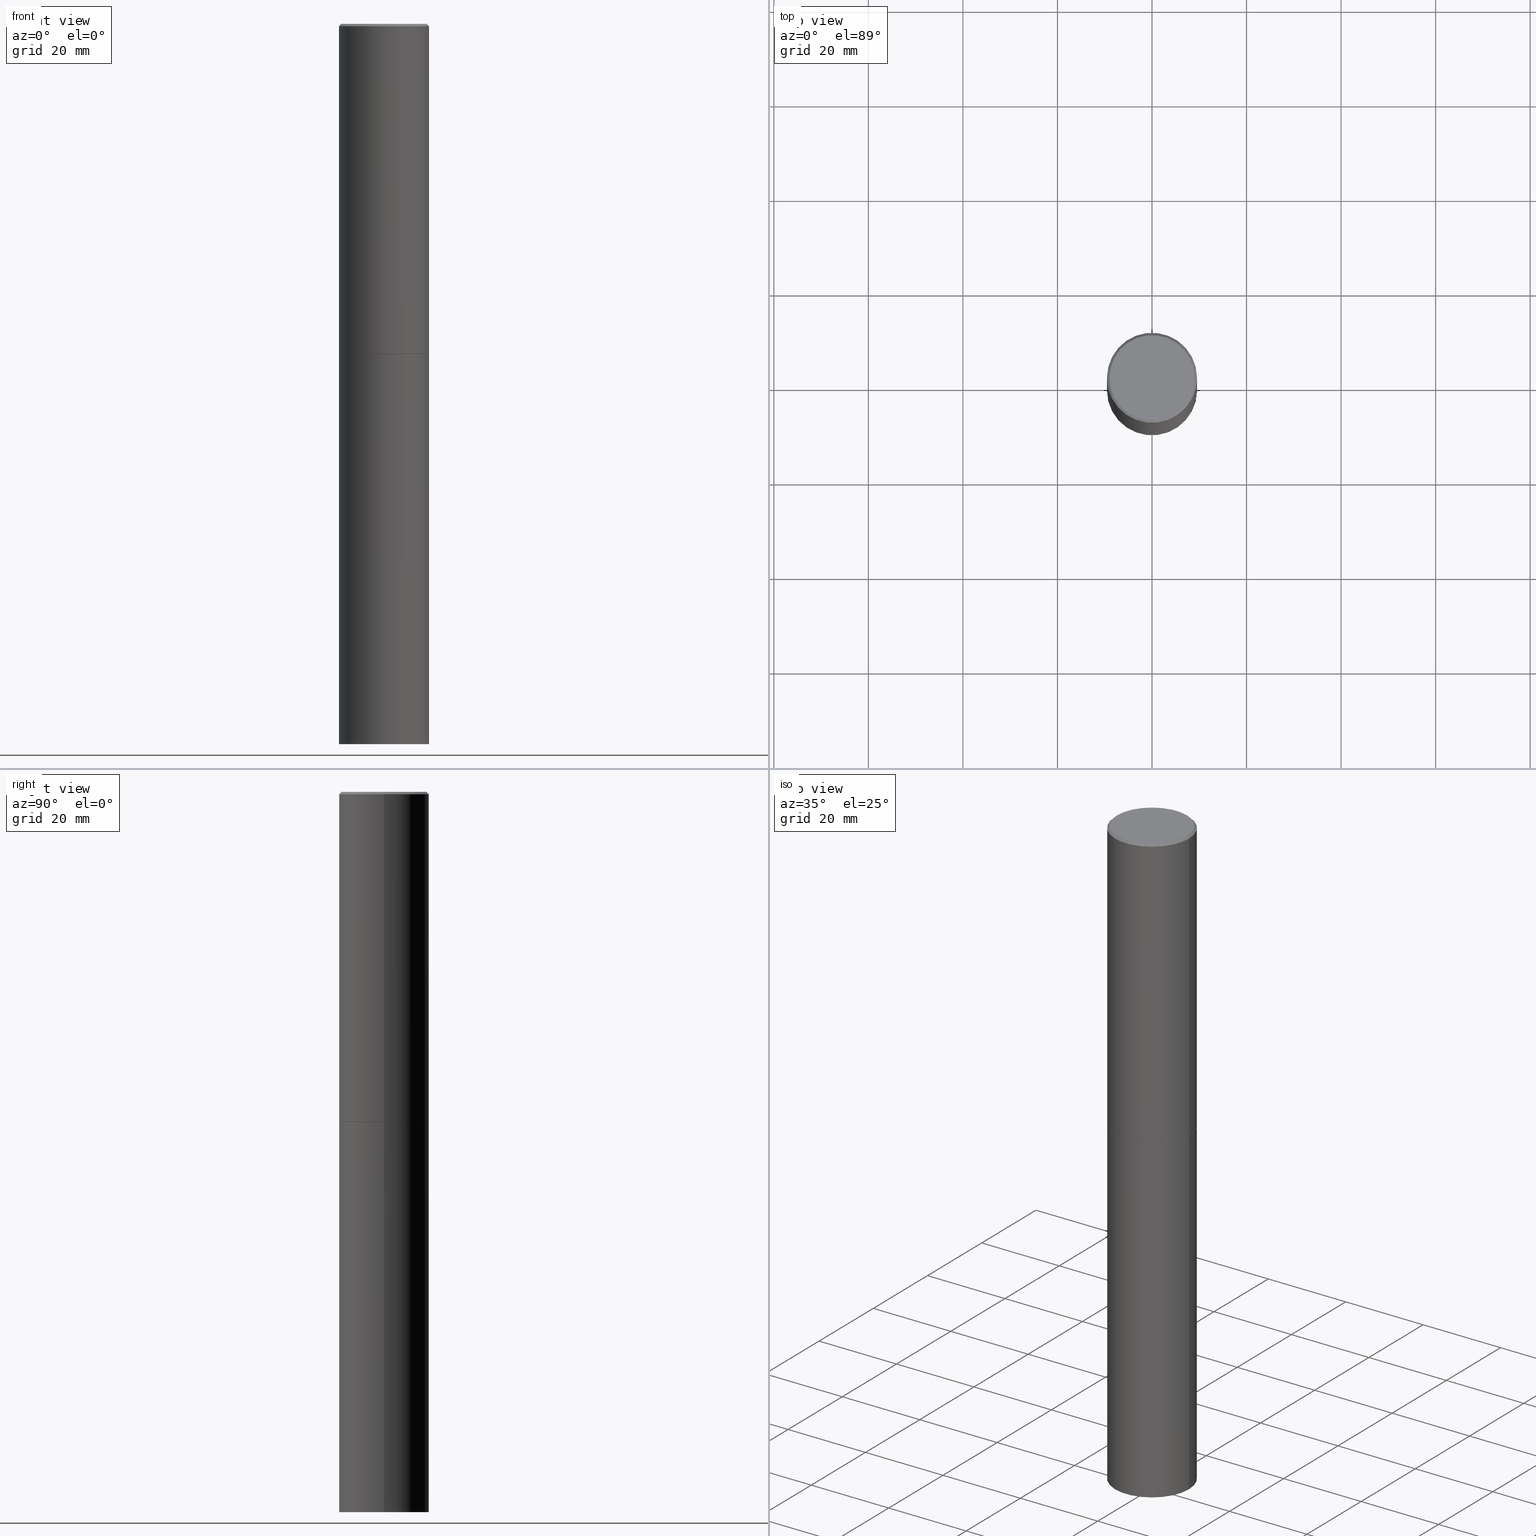
[diagram: canonical four-view strip — front | top / right | iso, engineering-drawing reading convention]
A machine part, canonical four-view strip (front | top / right | iso — engineering-drawing reading convention). The complete STEP part file that produces these views, byte-faithful:
ISO-10303-21;
HEADER;
FILE_DESCRIPTION (( 'STEP AP203' ),
    '1' );
FILE_NAME ('34723.STEP',
    '2024-02-27T17:05:42',
    ( '' ),
    ( '' ),
    'SwSTEP 2.0',
    'SolidWorks 2023',
    '' );
FILE_SCHEMA (( 'CONFIG_CONTROL_DESIGN' ));
ENDSEC;

DATA;
#1 = CIRCLE ( 'NONE', #185, 0.3549999999999997047 ) ;
#2 = APPROVAL ( #353, 'UNSPECIFIED' ) ;
#3 = VERTEX_POINT ( 'NONE', #124 ) ;
#4 = PERSON_AND_ORGANIZATION_ROLE ( 'design_supplier' ) ;
#5 = VECTOR ( 'NONE', #45, 39.37007874015748143 ) ;
#6 = FACE_OUTER_BOUND ( 'NONE', #59, .T. ) ;
#7 = EDGE_CURVE ( 'NONE', #366, #65, #363, .T. ) ;
#8 = EDGE_LOOP ( 'NONE', ( #82, #254, #249, #308 ) ) ;
#9 = EDGE_LOOP ( 'NONE', ( #141, #110 ) ) ;
#10 = DATE_AND_TIME ( #318, #79 ) ;
#11 = DIRECTION ( 'NONE',  ( 1.000000000000000000, -6.982962677686266711E-15, 4.876176775795935793E-29 ) ) ;
#12 = CARTESIAN_POINT ( 'NONE',  ( 6.722593748202942280E-29, -9.598082200479810007E-15, -2.749000000000000554 ) ) ;
#13 = CARTESIAN_POINT ( 'NONE',  ( 1.467281283711081958E-28, -2.094888803305887271E-14, -6.000000000000000888 ) ) ;
#14 = DIRECTION ( 'NONE',  ( 1.000000000000000000, -6.982962677686265133E-15, 0.000000000000000000 ) ) ;
#15 = CARTESIAN_POINT ( 'NONE',  ( 0.3749999999999998890, -2.618611004132349228E-15, 1.828566290923475362E-29 ) ) ;
#16 = ADVANCED_FACE ( 'NONE', ( #333 ), #159, .T. ) ;
#17 = CONICAL_SURFACE ( 'NONE', #61, 0.3749999999999997780, 0.7853981633974471688 ) ;
#18 = APPLICATION_CONTEXT ( 'configuration controlled 3d designs of mechanical parts and assemblies' ) ;
#19 = DIRECTION ( 'NONE',  ( 1.000000000000000000, -6.982962677686265922E-15, 4.876231632511992107E-29 ) ) ;
#20 = EDGE_CURVE ( 'NONE', #30, #3, #56, .T. ) ;
#21 = DIRECTION ( 'NONE',  ( -2.445468806185136597E-29, 3.491481338843145583E-15, 1.000000000000000000 ) ) ;
#22 = VERTEX_POINT ( 'NONE', #235 ) ;
#23 = VECTOR ( 'NONE', #265, 39.37007874015748143 ) ;
#24 =( CONVERSION_BASED_UNIT ( 'INCH', #304 ) LENGTH_UNIT ( ) NAMED_UNIT ( #132 ) );
#25 = AXIS2_PLACEMENT_3D ( 'NONE', #364, #51, #213 ) ;
#26 = EDGE_CURVE ( 'NONE', #22, #283, #184, .T. ) ;
#27 = CIRCLE ( 'NONE', #151, 0.3749999999999997780 ) ;
#28 = ORIENTED_EDGE ( 'NONE', *, *, #144, .F. ) ;
#29 = CALENDAR_DATE ( 2024, 27, 2 ) ;
#30 = VERTEX_POINT ( 'NONE', #41 ) ;
#31 = CIRCLE ( 'NONE', #205, 0.3750000000000000555 ) ;
#32 = EDGE_LOOP ( 'NONE', ( #218, #34 ) ) ;
#33 = EDGE_CURVE ( 'NONE', #344, #366, #73, .T. ) ;
#34 = ORIENTED_EDGE ( 'NONE', *, *, #358, .T. ) ;
#35 = FACE_OUTER_BOUND ( 'NONE', #186, .T. ) ;
#36 = PERSON_AND_ORGANIZATION_ROLE ( 'classification_officer' ) ;
#37 = DIRECTION ( 'NONE',  ( 2.445468806185136597E-29, -3.491481338843145583E-15, -1.000000000000000000 ) ) ;
#38 = EDGE_LOOP ( 'NONE', ( #187, #341 ) ) ;
#39 = SECURITY_CLASSIFICATION_LEVEL ( 'unclassified' ) ;
#40 = DIRECTION ( 'NONE',  ( 1.000000000000000000, -6.982962677686266711E-15, 4.876176775795935793E-29 ) ) ;
#41 = CARTESIAN_POINT ( 'NONE',  ( 0.3750000000000000555, -1.222018468595100145E-14, -2.750000000000000000 ) ) ;
#42 = AXIS2_PLACEMENT_3D ( 'NONE', #266, #95, #150 ) ;
#43 = DIRECTION ( 'NONE',  ( -2.445468806185136597E-29, 3.491481338843145583E-15, 1.000000000000000000 ) ) ;
#44 = LINE ( 'NONE', #120, #204 ) ;
#45 = DIRECTION ( 'NONE',  ( -2.445468806185136877E-29, 3.491481338843145188E-15, 1.000000000000000000 ) ) ;
#46 = ADVANCED_FACE ( 'NONE', ( #174 ), #93, .F. ) ;
#47 = CARTESIAN_POINT ( 'NONE',  ( -0.3749999999999998890, 2.664535259100374908E-15, -1.844600658845589038E-29 ) ) ;
#48 = AXIS2_PLACEMENT_3D ( 'NONE', #52, #176, #296 ) ;
#49 = AXIS2_PLACEMENT_3D ( 'NONE', #348, #193, #11 ) ;
#50 = EDGE_CURVE ( 'NONE', #22, #366, #44, .T. ) ;
#51 = DIRECTION ( 'NONE',  ( -2.445468806185136597E-29, 3.491481338843145583E-15, 1.000000000000000000 ) ) ;
#52 = CARTESIAN_POINT ( 'NONE',  ( 2.478951750578622237E-15, 0.3549999999999997047, -1.237341619044265441E-15 ) ) ;
#53 = DIRECTION ( 'NONE',  ( 1.000000000000000000, -6.982962677686265133E-15, 0.000000000000000000 ) ) ;
#54 =( GEOMETRIC_REPRESENTATION_CONTEXT ( 3 ) GLOBAL_UNCERTAINTY_ASSIGNED_CONTEXT ( ( #212 ) ) GLOBAL_UNIT_ASSIGNED_CONTEXT ( ( #24, #251, #191 ) ) REPRESENTATION_CONTEXT ( 'NONE', 'WORKASPACE' ) );
#55 = APPROVAL_DATE_TIME ( #330, #199 ) ;
#56 = CIRCLE ( 'NONE', #68, 0.3750000000000000555 ) ;
#57 = DIRECTION ( 'NONE',  ( -2.445468806185136597E-29, 3.491481338843145583E-15, 1.000000000000000000 ) ) ;
#58 = EDGE_CURVE ( 'NONE', #283, #65, #146, .T. ) ;
#59 = EDGE_LOOP ( 'NONE', ( #222, #136, #208, #84 ) ) ;
#60 = DATE_AND_TIME ( #232, #305 ) ;
#61 = AXIS2_PLACEMENT_3D ( 'NONE', #290, #37, #69 ) ;
#62 = AXIS2_PLACEMENT_3D ( 'NONE', #126, #198, #189 ) ;
#63 = DIRECTION ( 'NONE',  ( -2.445468806185136597E-29, 3.491481338843145583E-15, 1.000000000000000000 ) ) ;
#64 = CC_DESIGN_PERSON_AND_ORGANIZATION_ASSIGNMENT ( #162, #355, ( #99 ) ) ;
#65 = VERTEX_POINT ( 'NONE', #196 ) ;
#66 = COORDINATED_UNIVERSAL_TIME_OFFSET ( 5, 0, .BEHIND. ) ;
#67 = COORDINATED_UNIVERSAL_TIME_OFFSET ( 5, 0, .BEHIND. ) ;
#68 = AXIS2_PLACEMENT_3D ( 'NONE', #177, #239, #271 ) ;
#69 = DIRECTION ( 'NONE',  ( -1.000000000000000000, 6.982962677686265922E-15, 0.000000000000000000 ) ) ;
#70 = VECTOR ( 'NONE', #121, 39.37007874015748143 ) ;
#71 = MECHANICAL_CONTEXT ( 'NONE', #147, 'mechanical' ) ;
#72 = EDGE_LOOP ( 'NONE', ( #284, #248, #91, #107 ) ) ;
#73 = LINE ( 'NONE', #47, #164 ) ;
#74 = CARTESIAN_POINT ( 'NONE',  ( 4.890937612370298557E-31, -6.982962677686327354E-17, -0.02000000000000010103 ) ) ;
#75 = EDGE_CURVE ( 'NONE', #344, #325, #192, .T. ) ;
#76 = LOCAL_TIME ( 12, 5, 42.00000000000000000, #335 ) ;
#77 = VERTEX_POINT ( 'NONE', #356 ) ;
#78 = SHAPE_DEFINITION_REPRESENTATION ( #317, #277 ) ;
#79 = LOCAL_TIME ( 12, 5, 42.00000000000000000, #67 ) ;
#80 = ORIENTED_EDGE ( 'NONE', *, *, #247, .F. ) ;
#81 = ADVANCED_FACE ( 'NONE', ( #229 ), #256, .T. ) ;
#82 = ORIENTED_EDGE ( 'NONE', *, *, #58, .F. ) ;
#83 = CARTESIAN_POINT ( 'NONE',  ( 0.000000000000000000, 0.000000000000000000, 0.000000000000000000 ) ) ;
#84 = ORIENTED_EDGE ( 'NONE', *, *, #291, .F. ) ;
#85 = DIRECTION ( 'NONE',  ( 1.000000000000000000, -6.982962677686265133E-15, 0.000000000000000000 ) ) ;
#86 = DIRECTION ( 'NONE',  ( -2.445468806185136877E-29, 3.491481338843145188E-15, 1.000000000000000000 ) ) ;
#87 = ORIENTED_EDGE ( 'NONE', *, *, #270, .F. ) ;
#88 = PERSON_AND_ORGANIZATION ( #298, #133 ) ;
#89 = ADVANCED_FACE ( 'NONE', ( #169 ), #17, .T. ) ;
#90 = CC_DESIGN_APPROVAL ( #199, ( #172 ) ) ;
#91 = ORIENTED_EDGE ( 'NONE', *, *, #352, .T. ) ;
#92 = APPROVAL_DATE_TIME ( #60, #183 ) ;
#93 = PLANE ( 'NONE',  #42 ) ;
#94 = CYLINDRICAL_SURFACE ( 'NONE', #274, 0.3750000000000000555 ) ;
#95 = DIRECTION ( 'NONE',  ( -2.438088387897960049E-29, 3.491481338843145188E-15, 1.000000000000000000 ) ) ;
#96 = CARTESIAN_POINT ( 'NONE',  ( 1.467281283711081958E-28, -2.094888803305887271E-14, -6.000000000000000888 ) ) ;
#97 = COORDINATED_UNIVERSAL_TIME_OFFSET ( 5, 0, .BEHIND. ) ;
#98 = DIRECTION ( 'NONE',  ( 2.445468806185136597E-29, -3.491481338843145583E-15, -1.000000000000000000 ) ) ;
#99 = PRODUCT_DEFINITION ( 'UNKNOWN', '', #246, #302 ) ;
#100 = CARTESIAN_POINT ( 'NONE',  ( -1.043851414335219820E-46, 1.490343170380447200E-32, 4.268512490100411279E-18 ) ) ;
#101 = AXIS2_PLACEMENT_3D ( 'NONE', #170, #105, #357 ) ;
#102 = PLANE ( 'NONE',  #135 ) ;
#103 = APPROVAL_STATUS ( 'not_yet_approved' ) ;
#104 = DIRECTION ( 'NONE',  ( 1.000000000000000000, -6.982962677686266711E-15, 0.000000000000000000 ) ) ;
#105 = DIRECTION ( 'NONE',  ( 0.000000000000000000, 0.000000000000000000, 1.000000000000000000 ) ) ;
#106 = PRODUCT_RELATED_PRODUCT_CATEGORY ( 'detail', '', ( #334 ) ) ;
#107 = ORIENTED_EDGE ( 'NONE', *, *, #50, .F. ) ;
#108 = PERSON_AND_ORGANIZATION ( #298, #133 ) ;
#109 = APPROVAL_PERSON_ORGANIZATION ( #139, #183, #118 ) ;
#110 = ORIENTED_EDGE ( 'NONE', *, *, #125, .F. ) ;
#111 = AXIS2_PLACEMENT_3D ( 'NONE', #294, #43, #14 ) ;
#112 = VECTOR ( 'NONE', #301, 39.37007874015748143 ) ;
#113 = ADVANCED_FACE ( 'NONE', ( #200 ), #203, .T. ) ;
#114 = ORIENTED_EDGE ( 'NONE', *, *, #352, .F. ) ;
#115 = AXIS2_PLACEMENT_3D ( 'NONE', #228, #128, #40 ) ;
#116 = ORIENTED_EDGE ( 'NONE', *, *, #286, .T. ) ;
#117 = DIRECTION ( 'NONE',  ( 1.000000000000000000, -6.982962677686261189E-15, 0.000000000000000000 ) ) ;
#118 = APPROVAL_ROLE ( '' ) ;
#119 = CYLINDRICAL_SURFACE ( 'NONE', #49, 0.3749999999999998890 ) ;
#120 = CARTESIAN_POINT ( 'NONE',  ( -0.3749999999999997780, 2.548781377355484746E-15, -0.02000000000000010103 ) ) ;
#121 = DIRECTION ( 'NONE',  ( -0.7071067811870063169, 7.493145998872012346E-15, 0.7071067811860887176 ) ) ;
#122 = CC_DESIGN_SECURITY_CLASSIFICATION ( #172, ( #246 ) ) ;
#123 = PERSON_AND_ORGANIZATION_ROLE ( 'design_owner' ) ;
#124 = CARTESIAN_POINT ( 'NONE',  ( -0.3750000000000000555, -1.261069559833838480E-14, -2.750000000000000000 ) ) ;
#125 = EDGE_CURVE ( 'NONE', #220, #311, #137, .T. ) ;
#126 = CARTESIAN_POINT ( 'NONE',  ( 6.722593748202942280E-29, -9.598082200479810007E-15, -2.749000000000000554 ) ) ;
#127 = DIRECTION ( 'NONE',  ( -2.445468806185136597E-29, 3.491481338843145583E-15, 1.000000000000000000 ) ) ;
#128 = DIRECTION ( 'NONE',  ( -2.445468806185136597E-29, 3.491481338843145583E-15, 1.000000000000000000 ) ) ;
#129 = APPROVAL_PERSON_ORGANIZATION ( #108, #199, #332 ) ;
#130 = CARTESIAN_POINT ( 'NONE',  ( 2.618611004132417464E-15, 0.3749999999999903966, -2.750000000000000888 ) ) ;
#131 = VERTEX_POINT ( 'NONE', #240 ) ;
#132 = DIMENSIONAL_EXPONENTS ( 1.000000000000000000, 0.000000000000000000, 0.000000000000000000, 0.000000000000000000, 0.000000000000000000, 0.000000000000000000, 0.000000000000000000 ) ;
#133 = ORGANIZATION ( 'UNSPECIFIED', 'UNSPECIFIED', '' ) ;
#134 = ADVANCED_FACE ( 'NONE', ( #230 ), #261, .F. ) ;
#135 = AXIS2_PLACEMENT_3D ( 'NONE', #130, #207, #243 ) ;
#136 = ORIENTED_EDGE ( 'NONE', *, *, #270, .T. ) ;
#137 = CIRCLE ( 'NONE', #111, 0.3739999999999999991 ) ;
#138 = APPROVAL_PERSON_ORGANIZATION ( #346, #2, #315 ) ;
#139 = PERSON_AND_ORGANIZATION ( #298, #133 ) ;
#140 = DIRECTION ( 'NONE',  ( -2.445468806185136597E-29, 3.491481338843145583E-15, 1.000000000000000000 ) ) ;
#141 = ORIENTED_EDGE ( 'NONE', *, *, #295, .F. ) ;
#142 = CARTESIAN_POINT ( 'NONE',  ( 0.3549999999999997047, -2.538996582575039076E-15, 4.268512490117958041E-18 ) ) ;
#143 = CARTESIAN_POINT ( 'NONE',  ( 2.618611004132496745E-15, 0.3749999999999790723, -6.000000000000001776 ) ) ;
#144 = EDGE_CURVE ( 'NONE', #220, #344, #211, .T. ) ;
#145 = DIRECTION ( 'NONE',  ( -0.7071067811865466846, 2.468850131082247989E-15, -0.7071067811865483499 ) ) ;
#146 = LINE ( 'NONE', #224, #23 ) ;
#147 = APPLICATION_CONTEXT ( 'configuration controlled 3d designs of mechanical parts and assemblies' ) ;
#148 = CARTESIAN_POINT ( 'NONE',  ( 0.3739999999999999991, -1.221320172327331228E-14, -2.749999999999999556 ) ) ;
#149 = ADVANCED_FACE ( 'NONE', ( #197 ), #359, .T. ) ;
#150 = DIRECTION ( 'NONE',  ( 1.000000000000000000, -6.982962677686265922E-15, 4.876176775795935793E-29 ) ) ;
#151 = AXIS2_PLACEMENT_3D ( 'NONE', #74, #21, #152 ) ;
#152 = DIRECTION ( 'NONE',  ( 1.000000000000000000, -6.982962677686265922E-15, 0.000000000000000000 ) ) ;
#153 = CARTESIAN_POINT ( 'NONE',  ( -0.3749999999999997780, 2.548781377355484746E-15, -0.02000000000000010103 ) ) ;
#154 = ADVANCED_FACE ( 'NONE', ( #345 ), #306, .T. ) ;
#155 = CIRCLE ( 'NONE', #178, 0.3750000000000000555 ) ;
#156 = ORIENTED_EDGE ( 'NONE', *, *, #286, .F. ) ;
#157 = CALENDAR_DATE ( 2024, 27, 2 ) ;
#158 = CC_DESIGN_PERSON_AND_ORGANIZATION_ASSIGNMENT ( #252, #4, ( #246 ) ) ;
#159 = CONICAL_SURFACE ( 'NONE', #350, 0.3739999999999999991, 0.7853981633980972044 ) ;
#160 = DIRECTION ( 'NONE',  ( 1.000000000000000000, -6.982962677686265922E-15, 4.876176775795935793E-29 ) ) ;
#161 = LINE ( 'NONE', #347, #337 ) ;
#162 = PERSON_AND_ORGANIZATION ( #298, #133 ) ;
#163 = CC_DESIGN_PERSON_AND_ORGANIZATION_ASSIGNMENT ( #263, #36, ( #172 ) ) ;
#164 = VECTOR ( 'NONE', #206, 39.37007874015748143 ) ;
#165 = AXIS2_PLACEMENT_3D ( 'NONE', #179, #267, #104 ) ;
#166 = ORIENTED_EDGE ( 'NONE', *, *, #309, .F. ) ;
#167 = DIRECTION ( 'NONE',  ( 1.000000000000000000, -6.982962677686265922E-15, 4.876176775795935793E-29 ) ) ;
#168 = MANIFOLD_SOLID_BREP ( 'Body-Move/Copy2[1]', #226 ) ;
#169 = FACE_OUTER_BOUND ( 'NONE', #72, .T. ) ;
#170 = CARTESIAN_POINT ( 'NONE',  ( 0.000000000000000000, 0.000000000000000000, 0.000000000000000000 ) ) ;
#171 = DIRECTION ( 'NONE',  ( -2.445468806185136597E-29, 3.491481338843145583E-15, 1.000000000000000000 ) ) ;
#172 = SECURITY_CLASSIFICATION ( '', '', #39 ) ;
#173 = DIRECTION ( 'NONE',  ( -1.000000000000000000, 6.982962677686265922E-15, -4.876176775795935793E-29 ) ) ;
#174 = FACE_OUTER_BOUND ( 'NONE', #9, .T. ) ;
#175 = MANIFOLD_SOLID_BREP ( 'Body-Move/Copy2[2]', #336 ) ;
#176 = DIRECTION ( 'NONE',  ( 2.438088387897960049E-29, -3.491481338843145188E-15, -1.000000000000000000 ) ) ;
#177 = CARTESIAN_POINT ( 'NONE',  ( 6.725039217009124520E-29, -9.601573681818649859E-15, -2.750000000000000000 ) ) ;
#178 = AXIS2_PLACEMENT_3D ( 'NONE', #13, #140, #258 ) ;
#179 = CARTESIAN_POINT ( 'NONE',  ( 6.725039217009124520E-29, -9.601573681818649859E-15, -2.750000000000000000 ) ) ;
#180 = ORIENTED_EDGE ( 'NONE', *, *, #309, .T. ) ;
#181 = CIRCLE ( 'NONE', #324, 0.3739999999999999991 ) ;
#182 = ORIENTED_EDGE ( 'NONE', *, *, #75, .F. ) ;
#183 = APPROVAL ( #289, 'UNSPECIFIED' ) ;
#184 = CIRCLE ( 'NONE', #273, 0.3549999999999997047 ) ;
#185 = AXIS2_PLACEMENT_3D ( 'NONE', #365, #272, #19 ) ;
#186 = EDGE_LOOP ( 'NONE', ( #116, #312, #114, #166 ) ) ;
#187 = ORIENTED_EDGE ( 'NONE', *, *, #20, .T. ) ;
#188 = EDGE_LOOP ( 'NONE', ( #280, #219, #180, #287 ) ) ;
#189 = DIRECTION ( 'NONE',  ( 1.000000000000000000, -6.982962677686266711E-15, 0.000000000000000000 ) ) ;
#190 = ORIENTED_EDGE ( 'NONE', *, *, #125, .T. ) ;
#191 =( NAMED_UNIT ( * ) SI_UNIT ( $, .STERADIAN. ) SOLID_ANGLE_UNIT ( ) );
#192 = CIRCLE ( 'NONE', #245, 0.3750000000000000555 ) ;
#193 = DIRECTION ( 'NONE',  ( -2.445468806185136597E-29, 3.491481338843145583E-15, 1.000000000000000000 ) ) ;
#194 = LOCAL_TIME ( 12, 5, 42.00000000000000000, #97 ) ;
#195 = ORIENTED_EDGE ( 'NONE', *, *, #338, .F. ) ;
#196 = CARTESIAN_POINT ( 'NONE',  ( 0.3749999999999997780, -2.642516375941186056E-15, -0.02000000000000010103 ) ) ;
#197 = FACE_OUTER_BOUND ( 'NONE', #259, .T. ) ;
#198 = DIRECTION ( 'NONE',  ( -2.445468806185136597E-29, 3.491481338843145583E-15, 1.000000000000000000 ) ) ;
#199 = APPROVAL ( #103, 'UNSPECIFIED' ) ;
#200 = FACE_OUTER_BOUND ( 'NONE', #313, .T. ) ;
#201 = CARTESIAN_POINT ( 'NONE',  ( 0.3750000000000000555, -2.618611004132350016E-15, 1.828566290923476203E-29 ) ) ;
#202 = APPROVAL_DATE_TIME ( #10, #2 ) ;
#203 = PLANE ( 'NONE',  #268 ) ;
#204 = VECTOR ( 'NONE', #145, 39.37007874015748143 ) ;
#205 = AXIS2_PLACEMENT_3D ( 'NONE', #96, #262, #117 ) ;
#206 = DIRECTION ( 'NONE',  ( -2.445468806185136877E-29, 3.491481338843145188E-15, 1.000000000000000000 ) ) ;
#207 = DIRECTION ( 'NONE',  ( 2.438088387897960049E-29, -3.491481338843145188E-15, -1.000000000000000000 ) ) ;
#208 = ORIENTED_EDGE ( 'NONE', *, *, #20, .F. ) ;
#209 = CARTESIAN_POINT ( 'NONE',  ( -0.3739999999999999991, -6.938845395727654346E-15, -2.749999999999999556 ) ) ;
#210 = CARTESIAN_POINT ( 'NONE',  ( -0.3750000000000000555, -2.169420654527958195E-15, -2.749000000000000554 ) ) ;
#211 = LINE ( 'NONE', #244, #70 ) ;
#212 = UNCERTAINTY_MEASURE_WITH_UNIT (LENGTH_MEASURE( 1.000000000000000082E-05 ), #24, 'distance_accuracy_value', 'NONE');
#213 = DIRECTION ( 'NONE',  ( 1.000000000000000000, -6.982962677686265922E-15, 0.000000000000000000 ) ) ;
#214 = ADVANCED_FACE ( 'NONE', ( #331 ), #269, .T. ) ;
#215 = DATE_TIME_ROLE ( 'classification_date' ) ;
#216 = CARTESIAN_POINT ( 'NONE',  ( 6.725039217009123399E-29, -9.601573681818648281E-15, -2.749999999999999556 ) ) ;
#217 = AXIS2_PLACEMENT_3D ( 'NONE', #349, #98, #319 ) ;
#218 = ORIENTED_EDGE ( 'NONE', *, *, #26, .T. ) ;
#219 = ORIENTED_EDGE ( 'NONE', *, *, #75, .T. ) ;
#220 = VERTEX_POINT ( 'NONE', #209 ) ;
#221 = ORIENTED_EDGE ( 'NONE', *, *, #278, .T. ) ;
#222 = ORIENTED_EDGE ( 'NONE', *, *, #247, .T. ) ;
#223 = DATE_AND_TIME ( #260, #194 ) ;
#224 = CARTESIAN_POINT ( 'NONE',  ( 0.3749999999999997780, -2.642516375941186056E-15, -0.02000000000000010103 ) ) ;
#225 = APPLICATION_PROTOCOL_DEFINITION ( 'international standard', 'config_control_design', 1994, #147 ) ;
#226 = CLOSED_SHELL ( 'NONE', ( #253, #113, #320, #154 ) ) ;
#227 = CC_DESIGN_APPROVAL ( #183, ( #99 ) ) ;
#228 = CARTESIAN_POINT ( 'NONE',  ( 0.000000000000000000, 0.000000000000000000, 0.000000000000000000 ) ) ;
#229 = FACE_OUTER_BOUND ( 'NONE', #8, .T. ) ;
#230 = FACE_OUTER_BOUND ( 'NONE', #32, .T. ) ;
#231 = LINE ( 'NONE', #201, #316 ) ;
#232 = CALENDAR_DATE ( 2024, 27, 2 ) ;
#233 = DIRECTION ( 'NONE',  ( 1.000000000000000000, -6.982962677686266711E-15, 0.000000000000000000 ) ) ;
#234 = CARTESIAN_POINT ( 'NONE',  ( 0.000000000000000000, 0.000000000000000000, 0.000000000000000000 ) ) ;
#235 = CARTESIAN_POINT ( 'NONE',  ( -0.3549999999999997047, 2.513866563967053491E-15, 4.268512490082953109E-18 ) ) ;
#236 = LINE ( 'NONE', #15, #5 ) ;
#237 = CIRCLE ( 'NONE', #62, 0.3750000000000000555 ) ;
#238 = CC_DESIGN_PERSON_AND_ORGANIZATION_ASSIGNMENT ( #88, #339, ( #246 ) ) ;
#239 = DIRECTION ( 'NONE',  ( -2.445468806185136597E-29, 3.491481338843145583E-15, 1.000000000000000000 ) ) ;
#240 = CARTESIAN_POINT ( 'NONE',  ( 0.3750000000000000555, -2.356749903719122272E-14, -6.000000000000000888 ) ) ;
#241 = ADVANCED_FACE ( 'NONE', ( #35 ), #119, .T. ) ;
#242 =( LENGTH_UNIT ( ) NAMED_UNIT ( * ) SI_UNIT ( $, .METRE. ) );
#243 = DIRECTION ( 'NONE',  ( -1.000000000000000000, 6.982962677686265922E-15, -4.876176775795935793E-29 ) ) ;
#244 = CARTESIAN_POINT ( 'NONE',  ( -0.3739999999999999991, -6.944143850075873593E-15, -2.749999999999999556 ) ) ;
#245 = AXIS2_PLACEMENT_3D ( 'NONE', #12, #127, #233 ) ;
#246 = PRODUCT_DEFINITION_FORMATION_WITH_SPECIFIED_SOURCE ( 'ANY', '', #334, .NOT_KNOWN. ) ;
#247 = EDGE_CURVE ( 'NONE', #131, #77, #155, .T. ) ;
#248 = ORIENTED_EDGE ( 'NONE', *, *, #58, .T. ) ;
#249 = ORIENTED_EDGE ( 'NONE', *, *, #50, .T. ) ;
#250 = DIRECTION ( 'NONE',  ( -2.445468806185136597E-29, 3.491481338843145583E-15, 1.000000000000000000 ) ) ;
#251 =( NAMED_UNIT ( * ) PLANE_ANGLE_UNIT ( ) SI_UNIT ( $, .RADIAN. ) );
#252 = PERSON_AND_ORGANIZATION ( #298, #133 ) ;
#253 = ADVANCED_FACE ( 'NONE', ( #6 ), #94, .T. ) ;
#254 = ORIENTED_EDGE ( 'NONE', *, *, #26, .F. ) ;
#255 = DATE_AND_TIME ( #29, #285 ) ;
#256 = CONICAL_SURFACE ( 'NONE', #217, 0.3749999999999997780, 0.7853981633974471688 ) ;
#257 = AXIS2_PLACEMENT_3D ( 'NONE', #83, #57, #160 ) ;
#258 = DIRECTION ( 'NONE',  ( 1.000000000000000000, -6.982962677686261189E-15, 0.000000000000000000 ) ) ;
#259 = EDGE_LOOP ( 'NONE', ( #303, #340, #156, #195 ) ) ;
#260 = CALENDAR_DATE ( 2024, 27, 2 ) ;
#261 = PLANE ( 'NONE',  #48 ) ;
#262 = DIRECTION ( 'NONE',  ( -2.445468806185136597E-29, 3.491481338843145583E-15, 1.000000000000000000 ) ) ;
#263 = PERSON_AND_ORGANIZATION ( #298, #133 ) ;
#264 = PERSON_AND_ORGANIZATION ( #298, #133 ) ;
#265 = DIRECTION ( 'NONE',  ( 0.7071067811865466846, -7.319954787623252890E-15, -0.7071067811865483499 ) ) ;
#266 = CARTESIAN_POINT ( 'NONE',  ( 6.725039217009124520E-29, -9.601573681818649859E-15, -2.750000000000000000 ) ) ;
#267 = DIRECTION ( 'NONE',  ( -2.445468806185136597E-29, 3.491481338843145583E-15, 1.000000000000000000 ) ) ;
#268 = AXIS2_PLACEMENT_3D ( 'NONE', #143, #323, #173 ) ;
#269 = CYLINDRICAL_SURFACE ( 'NONE', #115, 0.3749999999999998890 ) ;
#270 = EDGE_CURVE ( 'NONE', #77, #3, #161, .T. ) ;
#271 = DIRECTION ( 'NONE',  ( 1.000000000000000000, -6.982962677686266711E-15, 0.000000000000000000 ) ) ;
#272 = DIRECTION ( 'NONE',  ( -2.445468806185136597E-29, 3.491481338843145583E-15, 1.000000000000000000 ) ) ;
#273 = AXIS2_PLACEMENT_3D ( 'NONE', #100, #361, #297 ) ;
#274 = AXIS2_PLACEMENT_3D ( 'NONE', #234, #63, #167 ) ;
#275 = EDGE_LOOP ( 'NONE', ( #87, #221, #343, #329 ) ) ;
#276 = CARTESIAN_POINT ( 'NONE',  ( 6.725039217009123399E-29, -9.601573681818648281E-15, -2.749999999999999556 ) ) ;
#277 = ADVANCED_BREP_SHAPE_REPRESENTATION ( '34723', ( #168, #175, #101 ), #54 ) ;
#278 = EDGE_CURVE ( 'NONE', #77, #131, #31, .T. ) ;
#279 = AXIS2_PLACEMENT_3D ( 'NONE', #276, #250, #288 ) ;
#280 = ORIENTED_EDGE ( 'NONE', *, *, #33, .F. ) ;
#281 = CC_DESIGN_DATE_AND_TIME_ASSIGNMENT ( #255, #215, ( #172 ) ) ;
#282 = EDGE_LOOP ( 'NONE', ( #28, #190, #354, #182 ) ) ;
#283 = VERTEX_POINT ( 'NONE', #142 ) ;
#284 = ORIENTED_EDGE ( 'NONE', *, *, #358, .F. ) ;
#285 = LOCAL_TIME ( 12, 5, 42.00000000000000000, #292 ) ;
#286 = EDGE_CURVE ( 'NONE', #325, #344, #237, .T. ) ;
#287 = ORIENTED_EDGE ( 'NONE', *, *, #7, .F. ) ;
#288 = DIRECTION ( 'NONE',  ( 1.000000000000000000, -6.982962677686265133E-15, 0.000000000000000000 ) ) ;
#289 = APPROVAL_STATUS ( 'not_yet_approved' ) ;
#290 = CARTESIAN_POINT ( 'NONE',  ( 4.890937612370298557E-31, -6.982962677686327354E-17, -0.02000000000000010103 ) ) ;
#291 = EDGE_CURVE ( 'NONE', #131, #30, #231, .T. ) ;
#292 = COORDINATED_UNIVERSAL_TIME_OFFSET ( 5, 0, .BEHIND. ) ;
#293 = APPLICATION_PROTOCOL_DEFINITION ( 'international standard', 'config_control_design', 1994, #18 ) ;
#294 = CARTESIAN_POINT ( 'NONE',  ( 6.725039217009123399E-29, -9.601573681818648281E-15, -2.749999999999999556 ) ) ;
#295 = EDGE_CURVE ( 'NONE', #311, #220, #181, .T. ) ;
#296 = DIRECTION ( 'NONE',  ( -1.000000000000000000, 6.982962677686265922E-15, -4.876176775795935793E-29 ) ) ;
#297 = DIRECTION ( 'NONE',  ( 1.000000000000000000, -6.982962677686265922E-15, 4.876231632511992107E-29 ) ) ;
#298 = PERSON ( 'UNSPECIFIED', 'UNSPECIFIED', 'UNSPECIFIED', ('UNSPECIFIED'), ('UNSPECIFIED'), ('UNSPECIFIED') ) ;
#299 = CC_DESIGN_PERSON_AND_ORGANIZATION_ASSIGNMENT ( #264, #123, ( #334 ) ) ;
#300 = ORIENTED_EDGE ( 'NONE', *, *, #278, .F. ) ;
#301 = DIRECTION ( 'NONE',  ( 0.7071067811870063169, -2.468850131087062801E-15, 0.7071067811860887176 ) ) ;
#302 = DESIGN_CONTEXT ( 'detailed design', #18, 'design' ) ;
#303 = ORIENTED_EDGE ( 'NONE', *, *, #295, .T. ) ;
#304 = LENGTH_MEASURE_WITH_UNIT ( LENGTH_MEASURE( 0.02539999999999999897 ), #242 );
#305 = LOCAL_TIME ( 12, 5, 42.00000000000000000, #66 ) ;
#306 = CYLINDRICAL_SURFACE ( 'NONE', #257, 0.3750000000000000555 ) ;
#307 = CC_DESIGN_DATE_AND_TIME_ASSIGNMENT ( #223, #321, ( #99 ) ) ;
#308 = ORIENTED_EDGE ( 'NONE', *, *, #7, .T. ) ;
#309 = EDGE_CURVE ( 'NONE', #325, #65, #236, .T. ) ;
#310 = DIRECTION ( 'NONE',  ( -2.445468806185136597E-29, 3.491481338843145583E-15, 1.000000000000000000 ) ) ;
#311 = VERTEX_POINT ( 'NONE', #148 ) ;
#312 = ORIENTED_EDGE ( 'NONE', *, *, #33, .T. ) ;
#313 = EDGE_LOOP ( 'NONE', ( #80, #300 ) ) ;
#314 = CARTESIAN_POINT ( 'NONE',  ( 6.725039217009123399E-29, -9.601573681818648281E-15, -2.749999999999999556 ) ) ;
#315 = APPROVAL_ROLE ( '' ) ;
#316 = VECTOR ( 'NONE', #322, 39.37007874015748143 ) ;
#317 = PRODUCT_DEFINITION_SHAPE ( 'NONE', 'NONE',  #99 ) ;
#318 = CALENDAR_DATE ( 2024, 27, 2 ) ;
#319 = DIRECTION ( 'NONE',  ( -1.000000000000000000, 6.982962677686265922E-15, 0.000000000000000000 ) ) ;
#320 = ADVANCED_FACE ( 'NONE', ( #360 ), #102, .F. ) ;
#321 = DATE_TIME_ROLE ( 'creation_date' ) ;
#322 = DIRECTION ( 'NONE',  ( -2.445468806185136877E-29, 3.491481338843145188E-15, 1.000000000000000000 ) ) ;
#323 = DIRECTION ( 'NONE',  ( 2.438088387897960049E-29, -3.491481338843145188E-15, -1.000000000000000000 ) ) ;
#324 = AXIS2_PLACEMENT_3D ( 'NONE', #314, #171, #53 ) ;
#325 = VERTEX_POINT ( 'NONE', #328 ) ;
#326 = EDGE_CURVE ( 'NONE', #3, #30, #351, .T. ) ;
#327 = CARTESIAN_POINT ( 'NONE',  ( 0.3739999999999999991, -1.221320172327331228E-14, -2.749999999999999556 ) ) ;
#328 = CARTESIAN_POINT ( 'NONE',  ( 0.3750000000000000555, -1.221669320461216002E-14, -2.749000000000000554 ) ) ;
#329 = ORIENTED_EDGE ( 'NONE', *, *, #326, .F. ) ;
#330 = DATE_AND_TIME ( #157, #76 ) ;
#331 = FACE_OUTER_BOUND ( 'NONE', #188, .T. ) ;
#332 = APPROVAL_ROLE ( '' ) ;
#333 = FACE_OUTER_BOUND ( 'NONE', #282, .T. ) ;
#334 = PRODUCT ( '34723', '34723', '', ( #71 ) ) ;
#335 = COORDINATED_UNIVERSAL_TIME_OFFSET ( 5, 0, .BEHIND. ) ;
#336 = CLOSED_SHELL ( 'NONE', ( #149, #241, #89, #81, #214, #16, #46, #134 ) ) ;
#337 = VECTOR ( 'NONE', #86, 39.37007874015748143 ) ;
#338 = EDGE_CURVE ( 'NONE', #311, #325, #362, .T. ) ;
#339 = PERSON_AND_ORGANIZATION_ROLE ( 'creator' ) ;
#340 = ORIENTED_EDGE ( 'NONE', *, *, #144, .T. ) ;
#341 = ORIENTED_EDGE ( 'NONE', *, *, #326, .T. ) ;
#342 = CC_DESIGN_APPROVAL ( #2, ( #246 ) ) ;
#343 = ORIENTED_EDGE ( 'NONE', *, *, #291, .T. ) ;
#344 = VERTEX_POINT ( 'NONE', #210 ) ;
#345 = FACE_OUTER_BOUND ( 'NONE', #275, .T. ) ;
#346 = PERSON_AND_ORGANIZATION ( #298, #133 ) ;
#347 = CARTESIAN_POINT ( 'NONE',  ( -0.3750000000000000555, 2.664535259100376091E-15, -1.844600658845589598E-29 ) ) ;
#348 = CARTESIAN_POINT ( 'NONE',  ( 0.000000000000000000, 0.000000000000000000, 0.000000000000000000 ) ) ;
#349 = CARTESIAN_POINT ( 'NONE',  ( 4.890937612370298557E-31, -6.982962677686327354E-17, -0.02000000000000010103 ) ) ;
#350 = AXIS2_PLACEMENT_3D ( 'NONE', #216, #310, #85 ) ;
#351 = CIRCLE ( 'NONE', #165, 0.3750000000000000555 ) ;
#352 = EDGE_CURVE ( 'NONE', #65, #366, #27, .T. ) ;
#353 = APPROVAL_STATUS ( 'not_yet_approved' ) ;
#354 = ORIENTED_EDGE ( 'NONE', *, *, #338, .T. ) ;
#355 = PERSON_AND_ORGANIZATION_ROLE ( 'creator' ) ;
#356 = CARTESIAN_POINT ( 'NONE',  ( -0.3750000000000000555, -1.261069559833838480E-14, -6.000000000000000888 ) ) ;
#357 = DIRECTION ( 'NONE',  ( 1.000000000000000000, 0.000000000000000000, 0.000000000000000000 ) ) ;
#358 = EDGE_CURVE ( 'NONE', #283, #22, #1, .T. ) ;
#359 = CONICAL_SURFACE ( 'NONE', #279, 0.3739999999999999991, 0.7853981633980972044 ) ;
#360 = FACE_OUTER_BOUND ( 'NONE', #38, .T. ) ;
#361 = DIRECTION ( 'NONE',  ( -2.445468806185136597E-29, 3.491481338843145583E-15, 1.000000000000000000 ) ) ;
#362 = LINE ( 'NONE', #327, #112 ) ;
#363 = CIRCLE ( 'NONE', #25, 0.3749999999999997780 ) ;
#364 = CARTESIAN_POINT ( 'NONE',  ( 4.890937612370298557E-31, -6.982962677686327354E-17, -0.02000000000000010103 ) ) ;
#365 = CARTESIAN_POINT ( 'NONE',  ( -1.043851414335219820E-46, 1.490343170380447200E-32, 4.268512490100411279E-18 ) ) ;
#366 = VERTEX_POINT ( 'NONE', #153 ) ;
ENDSEC;
END-ISO-10303-21;
